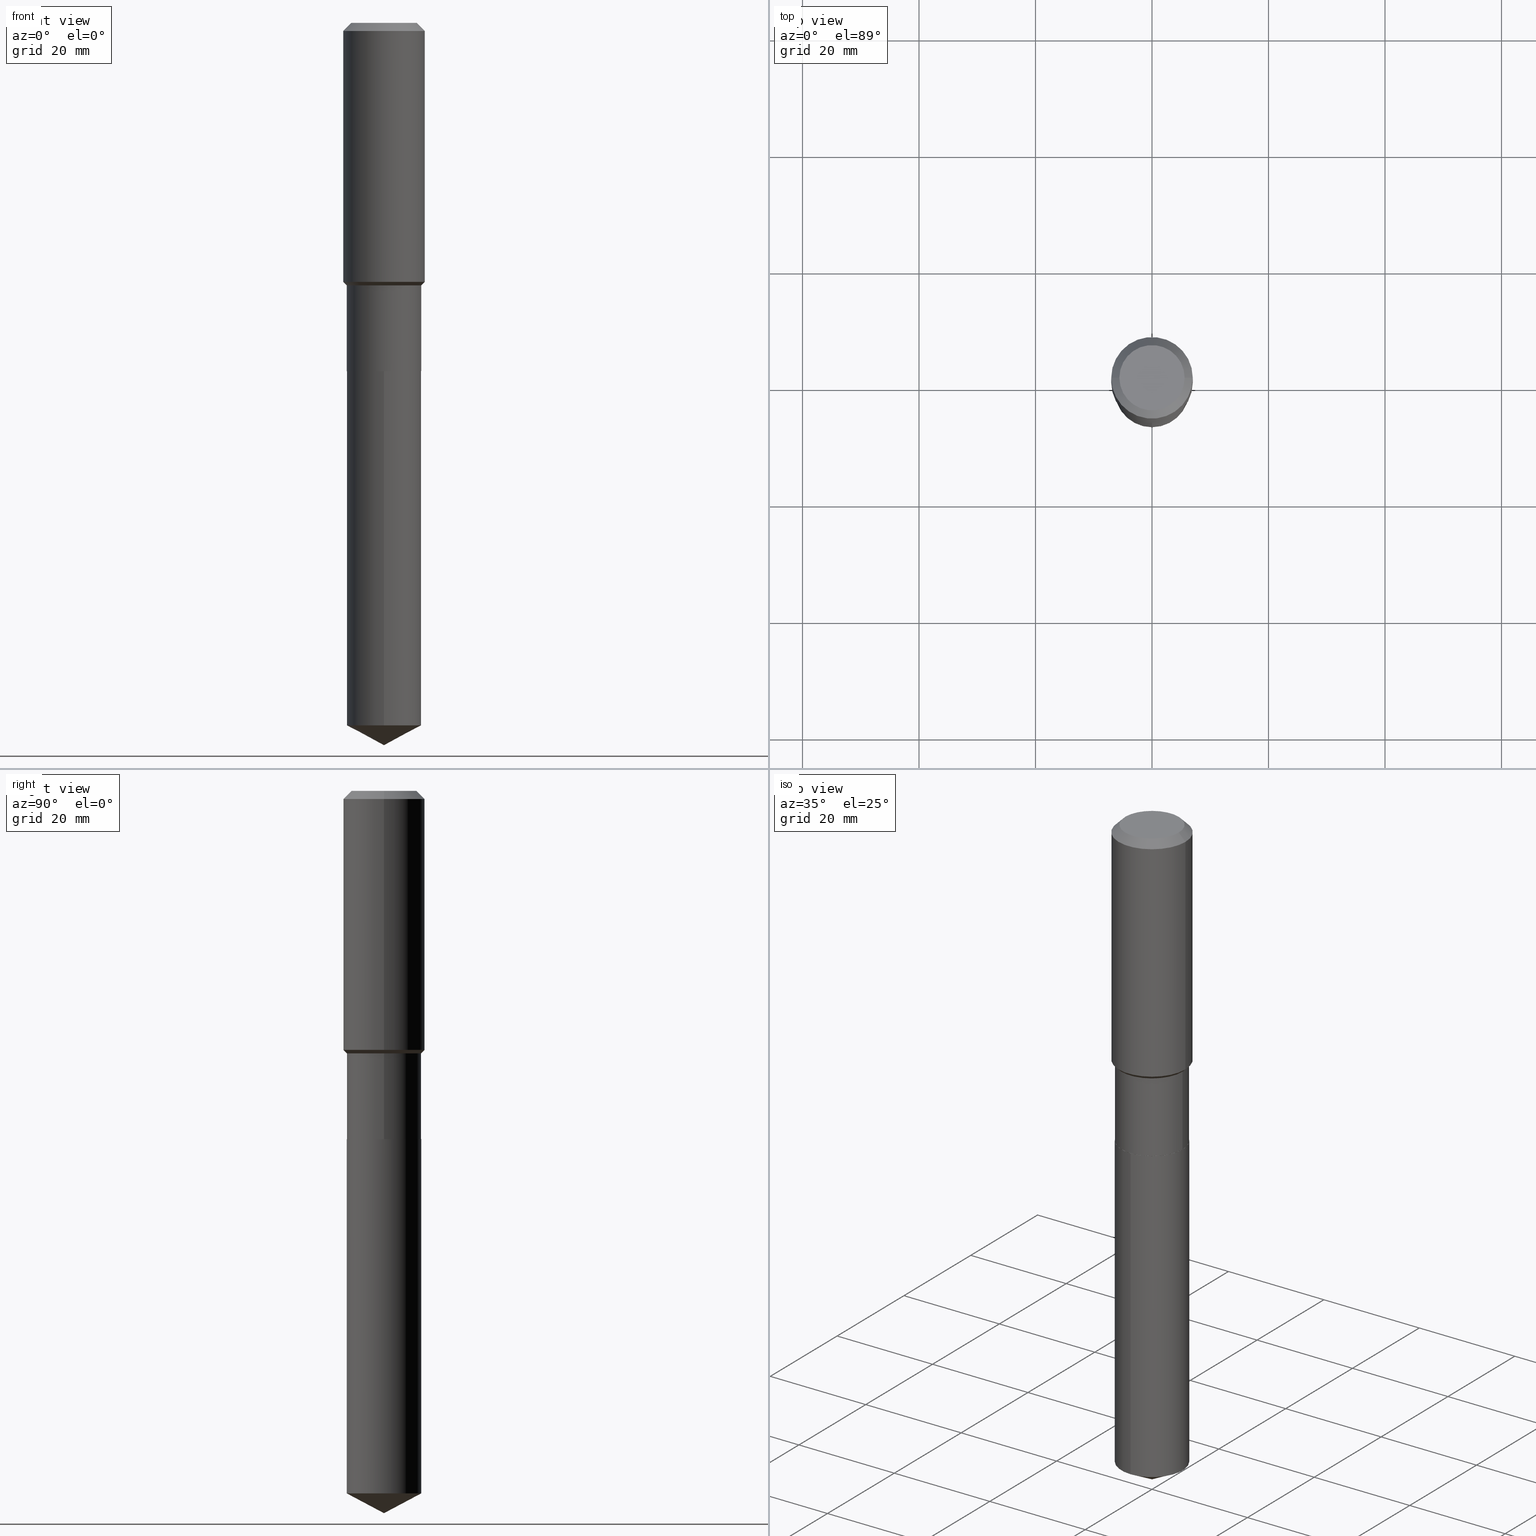
[diagram: canonical four-view strip — front | top / right | iso, engineering-drawing reading convention]
A machine part, canonical four-view strip (front | top / right | iso — engineering-drawing reading convention). The complete STEP part file that produces these views, byte-faithful:
ISO-10303-21;
HEADER;
FILE_DESCRIPTION (( 'STEP AP203' ),
    '1' );
FILE_NAME ('64892.STEP',
    '2024-04-24T19:35:12',
    ( '' ),
    ( '' ),
    'SwSTEP 2.0',
    'SolidWorks 2023',
    '' );
FILE_SCHEMA (( 'CONFIG_CONTROL_DESIGN' ));
ENDSEC;

DATA;
#1 = DIRECTION ( 'NONE',  ( -2.445468806185136877E-29, 3.491481338843145188E-15, 1.000000000000000000 ) ) ;
#2 = ORIENTED_EDGE ( 'NONE', *, *, #483, .F. ) ;
#3 = EDGE_CURVE ( 'NONE', #192, #113, #128, .T. ) ;
#4 = DIRECTION ( 'NONE',  ( -2.445468806185136597E-29, 3.491481338843145583E-15, 1.000000000000000000 ) ) ;
#5 = ORIENTED_EDGE ( 'NONE', *, *, #321, .F. ) ;
#6 = LINE ( 'NONE', #228, #369 ) ;
#7 = ORIENTED_EDGE ( 'NONE', *, *, #10, .T. ) ;
#8 = AXIS2_PLACEMENT_3D ( 'NONE', #151, #112, #265 ) ;
#9 = VECTOR ( 'NONE', #140, 39.37007874015748854 ) ;
#10 = EDGE_CURVE ( 'NONE', #92, #113, #318, .T. ) ;
#11 = DIRECTION ( 'NONE',  ( -0.7071067811866199593, 7.493145998870616062E-15, 0.7071067811864750752 ) ) ;
#12 = DATE_AND_TIME ( #422, #144 ) ;
#13 = FACE_OUTER_BOUND ( 'NONE', #420, .T. ) ;
#14 = DIRECTION ( 'NONE',  ( 1.000000000000000000, -6.982962677686263555E-15, 0.000000000000000000 ) ) ;
#15 = DIRECTION ( 'NONE',  ( 1.000000000000000000, -6.982962677686267499E-15, 0.000000000000000000 ) ) ;
#16 = CONICAL_SURFACE ( 'NONE', #400, 0.2519499999999999518, 0.7853981633974511656 ) ;
#17 = ORIENTED_EDGE ( 'NONE', *, *, #81, .T. ) ;
#18 = DIRECTION ( 'NONE',  ( 1.000000000000000000, -6.982962677686267499E-15, 0.000000000000000000 ) ) ;
#19 = DIRECTION ( 'NONE',  ( 1.000000000000000000, -6.982962677686265922E-15, 0.000000000000000000 ) ) ;
#20 = DIRECTION ( 'NONE',  ( 1.000000000000000000, -6.982962677686263555E-15, 0.000000000000000000 ) ) ;
#21 = PERSON_AND_ORGANIZATION ( #213, #40 ) ;
#22 = FACE_OUTER_BOUND ( 'NONE', #478, .T. ) ;
#23 = EDGE_CURVE ( 'NONE', #342, #266, #467, .T. ) ;
#24 = AXIS2_PLACEMENT_3D ( 'NONE', #471, #94, #282 ) ;
#25 = APPROVAL_DATE_TIME ( #100, #314 ) ;
#26 = CARTESIAN_POINT ( 'NONE',  ( -9.439721640706190018E-47, 1.347742071746724849E-32, 3.860086710912454339E-18 ) ) ;
#27 = SECURITY_CLASSIFICATION_LEVEL ( 'unclassified' ) ;
#28 = DIRECTION ( 'NONE',  ( -2.445468806185136597E-29, 3.491481338843145583E-15, 1.000000000000000000 ) ) ;
#29 = EDGE_CURVE ( 'NONE', #325, #118, #154, .T. ) ;
#30 = CARTESIAN_POINT ( 'NONE',  ( 5.757367210401667077E-29, -8.219994516038417503E-15, -2.354300000000000281 ) ) ;
#31 = CC_DESIGN_SECURITY_CLASSIFICATION ( #418, ( #319 ) ) ;
#32 = VECTOR ( 'NONE', #11, 39.37007874015748143 ) ;
#33 = DIRECTION ( 'NONE',  ( -2.445212377427573350E-29, 3.491848559418994471E-15, 1.000000000000000000 ) ) ;
#34 = DIRECTION ( 'NONE',  ( -2.438088387897960049E-29, 3.491481338843145188E-15, 1.000000000000000000 ) ) ;
#35 = VERTEX_POINT ( 'NONE', #57 ) ;
#36 = FACE_OUTER_BOUND ( 'NONE', #120, .T. ) ;
#37 = ORIENTED_EDGE ( 'NONE', *, *, #23, .T. ) ;
#38 = EDGE_CURVE ( 'NONE', #417, #356, #431, .T. ) ;
#39 = CC_DESIGN_APPROVAL ( #486, ( #329 ) ) ;
#40 = ORGANIZATION ( 'UNSPECIFIED', 'UNSPECIFIED', '' ) ;
#41 = FACE_OUTER_BOUND ( 'NONE', #242, .T. ) ;
#42 = EDGE_LOOP ( 'NONE', ( #310, #71 ) ) ;
#43 = CARTESIAN_POINT ( 'NONE',  ( 1.347942405969256063E-30, -1.924504513970354330E-16, -0.05512000000000035621 ) ) ;
#44 = ORIENTED_EDGE ( 'NONE', *, *, #366, .F. ) ;
#45 = ADVANCED_FACE ( 'NONE', ( #13 ), #214, .T. ) ;
#46 =( CONVERSION_BASED_UNIT ( 'INCH', #53 ) LENGTH_UNIT ( ) NAMED_UNIT ( #287 ) );
#47 = EDGE_LOOP ( 'NONE', ( #487, #7, #132, #44 ) ) ;
#48 = DIRECTION ( 'NONE',  ( 1.000000000000000000, 0.000000000000000000, 0.000000000000000000 ) ) ;
#49 = AXIS2_PLACEMENT_3D ( 'NONE', #79, #414, #416 ) ;
#50 = DIRECTION ( 'NONE',  ( -6.982962677686265922E-15, -1.000000000000000000, 3.252845398290450098E-15 ) ) ;
#51 = CARTESIAN_POINT ( 'NONE',  ( 5.757367210401667077E-29, -8.219994516038417503E-15, -2.354300000000000281 ) ) ;
#52 = DIRECTION ( 'NONE',  ( -2.445468806185136597E-29, 3.491481338843145583E-15, 1.000000000000000000 ) ) ;
#53 = LENGTH_MEASURE_WITH_UNIT ( LENGTH_MEASURE( 0.02539999999999999897 ), #82 );
#54 = DIRECTION ( 'NONE',  ( 1.000000000000000000, -6.982962677686267499E-15, 4.876176775795935793E-29 ) ) ;
#55 = APPROVAL_PERSON_ORGANIZATION ( #257, #314, #405 ) ;
#56 = LINE ( 'NONE', #347, #294 ) ;
#57 = CARTESIAN_POINT ( 'NONE',  ( 0.2204800000000000093, -1.797903149065768707E-15, 3.860086710924123164E-18 ) ) ;
#58 = CC_DESIGN_PERSON_AND_ORGANIZATION_ASSIGNMENT ( #119, #322, ( #180 ) ) ;
#59 = DIRECTION ( 'NONE',  ( 1.000000000000000000, -6.982962677686263555E-15, 0.000000000000000000 ) ) ;
#60 = CARTESIAN_POINT ( 'NONE',  ( 1.790212422747629662E-15, 0.2519499999999917361, -2.354300000000000725 ) ) ;
#61 = AXIS2_PLACEMENT_3D ( 'NONE', #317, #349, #50 ) ;
#62 = CARTESIAN_POINT ( 'NONE',  ( -0.2519499999999999518, -5.417252505026333520E-15, -1.774799999999999933 ) ) ;
#63 = CIRCLE ( 'NONE', #436, 0.2519499999999999518 ) ;
#64 = AXIS2_PLACEMENT_3D ( 'NONE', #138, #220, #475 ) ;
#65 = SHAPE_DEFINITION_REPRESENTATION ( #411, #364 ) ;
#66 = PLANE ( 'NONE',  #64 ) ;
#67 = DIRECTION ( 'NONE',  ( 2.445212377427573070E-29, -3.491848559418994471E-15, -1.000000000000000000 ) ) ;
#68 = LINE ( 'NONE', #116, #111 ) ;
#69 = VECTOR ( 'NONE', #254, 39.37007874015748143 ) ;
#70 = CARTESIAN_POINT ( 'NONE',  ( 5.757367210401667077E-29, -8.219994516038417503E-15, -2.354300000000000281 ) ) ;
#71 = ORIENTED_EDGE ( 'NONE', *, *, #150, .F. ) ;
#72 = ADVANCED_FACE ( 'NONE', ( #198 ), #469, .T. ) ;
#73 = CARTESIAN_POINT ( 'NONE',  ( 1.347942405969256063E-30, -1.924504513970354330E-16, -0.05512000000000035621 ) ) ;
#74 = ORIENTED_EDGE ( 'NONE', *, *, #259, .F. ) ;
#75 = CARTESIAN_POINT ( 'NONE',  ( 1.790212422747688433E-15, 0.2519499999999834650, -4.747935808692891335 ) ) ;
#76 = EDGE_CURVE ( 'NONE', #335, #149, #162, .T. ) ;
#77 = ORIENTED_EDGE ( 'NONE', *, *, #133, .F. ) ;
#78 = AXIS2_PLACEMENT_3D ( 'NONE', #70, #34, #336 ) ;
#79 = CARTESIAN_POINT ( 'NONE',  ( -9.439721640706190018E-47, 1.347742071746724849E-32, 3.860086710912454339E-18 ) ) ;
#80 = EDGE_LOOP ( 'NONE', ( #247, #110, #269, #274 ) ) ;
#81 = EDGE_CURVE ( 'NONE', #266, #342, #104, .T. ) ;
#82 =( LENGTH_UNIT ( ) NAMED_UNIT ( * ) SI_UNIT ( $, .METRE. ) );
#83 = ORIENTED_EDGE ( 'NONE', *, *, #395, .F. ) ;
#84 = DIRECTION ( 'NONE',  ( -2.445468806185136597E-29, 3.491481338843145583E-15, 1.000000000000000000 ) ) ;
#85 = DIRECTION ( 'NONE',  ( -2.445468806185136597E-29, 3.491481338843145583E-15, 1.000000000000000000 ) ) ;
#86 = CC_DESIGN_APPROVAL ( #368, ( #319 ) ) ;
#87 = CARTESIAN_POINT ( 'NONE',  ( -0.2756000000000000116, -1.195023219201267341E-15, -0.05512000000000035621 ) ) ;
#88 = ORIENTED_EDGE ( 'NONE', *, *, #178, .F. ) ;
#89 = CARTESIAN_POINT ( 'NONE',  ( 0.2519499999999999518, -7.956038526821868809E-15, -1.774799999999999933 ) ) ;
#90 = DIRECTION ( 'NONE',  ( -2.445212377427573350E-29, 3.491848559418994471E-15, 1.000000000000000000 ) ) ;
#91 = APPROVAL_DATE_TIME ( #433, #486 ) ;
#92 = VERTEX_POINT ( 'NONE', #203 ) ;
#93 = CC_DESIGN_APPROVAL ( #314, ( #418 ) ) ;
#94 = DIRECTION ( 'NONE',  ( -2.445468806185136597E-29, 3.491481338843145583E-15, 1.000000000000000000 ) ) ;
#95 = AXIS2_PLACEMENT_3D ( 'NONE', #166, #85, #19 ) ;
#96 = ADVANCED_FACE ( 'NONE', ( #124 ), #248, .T. ) ;
#97 = LINE ( 'NONE', #60, #69 ) ;
#98 = PERSON_AND_ORGANIZATION_ROLE ( 'classification_officer' ) ;
#99 = CARTESIAN_POINT ( 'NONE',  ( -0.2756000000000000116, 1.732054062573300039E-15, -0.05512000000000035621 ) ) ;
#100 = DATE_AND_TIME ( #476, #332 ) ;
#101 = APPROVAL_PERSON_ORGANIZATION ( #315, #368, #428 ) ;
#102 = CARTESIAN_POINT ( 'NONE',  ( 0.2756000000000001227, -1.924504513970336137E-15, 1.343874319409360548E-29 ) ) ;
#103 = EDGE_LOOP ( 'NONE', ( #313, #415, #299, #196 ) ) ;
#104 = CIRCLE ( 'NONE', #61, 0.2519500000000000073 ) ;
#105 = CALENDAR_DATE ( 2024, 24, 4 ) ;
#106 = DIRECTION ( 'NONE',  ( -0.7071067811865453523, 2.468850131082234184E-15, -0.7071067811865496822 ) ) ;
#107 = MANIFOLD_SOLID_BREP ( 'Body-Move/Copy2[1]', #427 ) ;
#108 = CARTESIAN_POINT ( 'NONE',  ( 5.757367210401667077E-29, -8.219994516038417503E-15, -2.354300000000000281 ) ) ;
#109 = DIRECTION ( 'NONE',  ( -2.445468806185136597E-29, 3.491481338843145583E-15, 1.000000000000000000 ) ) ;
#110 = ORIENTED_EDGE ( 'NONE', *, *, #146, .T. ) ;
#111 = VECTOR ( 'NONE', #1, 39.37007874015748143 ) ;
#112 = DIRECTION ( 'NONE',  ( 2.445468806185136597E-29, -3.491481338843145583E-15, -1.000000000000000000 ) ) ;
#113 = VERTEX_POINT ( 'NONE', #323 ) ;
#114 = CARTESIAN_POINT ( 'NONE',  ( 4.340218037217379778E-29, -6.196681080178814403E-15, -1.774799999999999933 ) ) ;
#115 = VERTEX_POINT ( 'NONE', #391 ) ;
#116 = CARTESIAN_POINT ( 'NONE',  ( -0.2756000000000001227, 1.958255779754836984E-15, -1.355658510874252567E-29 ) ) ;
#117 = ADVANCED_FACE ( 'NONE', ( #363 ), #243, .T. ) ;
#118 = VERTEX_POINT ( 'NONE', #62 ) ;
#119 = PERSON_AND_ORGANIZATION ( #213, #40 ) ;
#120 = EDGE_LOOP ( 'NONE', ( #74, #432, #229, #209 ) ) ;
#121 = APPROVAL_ROLE ( '' ) ;
#122 = VERTEX_POINT ( 'NONE', #183 ) ;
#123 = APPROVAL_STATUS ( 'not_yet_approved' ) ;
#124 = FACE_OUTER_BOUND ( 'NONE', #80, .T. ) ;
#125 = AXIS2_PLACEMENT_3D ( 'NONE', #30, #67, #326 ) ;
#126 = EDGE_CURVE ( 'NONE', #346, #149, #396, .T. ) ;
#127 = AXIS2_PLACEMENT_3D ( 'NONE', #309, #157, #457 ) ;
#128 = CIRCLE ( 'NONE', #24, 0.2519500000000000073 ) ;
#129 = ORIENTED_EDGE ( 'NONE', *, *, #240, .T. ) ;
#130 = COORDINATED_UNIVERSAL_TIME_OFFSET ( 5, 0, .BEHIND. ) ;
#131 = DIRECTION ( 'NONE',  ( -2.445212377427573350E-29, 3.491848559418994471E-15, 1.000000000000000000 ) ) ;
#132 = ORIENTED_EDGE ( 'NONE', *, *, #3, .F. ) ;
#133 = EDGE_CURVE ( 'NONE', #149, #335, #136, .T. ) ;
#134 = LOCAL_TIME ( 15, 35, 12.00000000000000000, #219 ) ;
#135 = LINE ( 'NONE', #99, #256 ) ;
#136 = CIRCLE ( 'NONE', #279, 0.2519500000000000073 ) ;
#137 = CC_DESIGN_PERSON_AND_ORGANIZATION_ASSIGNMENT ( #480, #402, ( #319 ) ) ;
#138 = CARTESIAN_POINT ( 'NONE',  ( -4.719860820353095009E-47, 6.738710358733624243E-33, 1.930043355456227170E-18 ) ) ;
#139 = DATE_AND_TIME ( #105, #182 ) ;
#140 = DIRECTION ( 'NONE',  ( -6.165590087286828929E-15, -0.8829475928589255451, 0.4694715627858935258 ) ) ;
#141 = EDGE_LOOP ( 'NONE', ( #286, #454 ) ) ;
#142 = ADVANCED_FACE ( 'NONE', ( #446 ), #66, .F. ) ;
#143 = DATE_AND_TIME ( #221, #134 ) ;
#144 = LOCAL_TIME ( 15, 35, 12.00000000000000000, #424 ) ;
#145 = DIRECTION ( 'NONE',  ( -6.982962677686265922E-15, -1.000000000000000000, 4.337127197720600657E-15 ) ) ;
#146 = EDGE_CURVE ( 'NONE', #113, #118, #252, .T. ) ;
#147 = DIRECTION ( 'NONE',  ( 1.000000000000000000, -6.982962677686267499E-15, 4.876176775795935793E-29 ) ) ;
#148 = FACE_OUTER_BOUND ( 'NONE', #158, .T. ) ;
#149 = VERTEX_POINT ( 'NONE', #292 ) ;
#150 = EDGE_CURVE ( 'NONE', #92, #115, #339, .T. ) ;
#151 = CARTESIAN_POINT ( 'NONE',  ( 1.347942405969256063E-30, -1.924504513970354330E-16, -0.05512000000000035621 ) ) ;
#152 = AXIS2_PLACEMENT_3D ( 'NONE', #26, #177, #293 ) ;
#153 = ORIENTED_EDGE ( 'NONE', *, *, #464, .T. ) ;
#154 = CIRCLE ( 'NONE', #311, 0.2519499999999999518 ) ;
#155 = CARTESIAN_POINT ( 'NONE',  ( -1.759357446642997213E-15, -0.2519500000000082229, -2.354299999999999393 ) ) ;
#156 = ORIENTED_EDGE ( 'NONE', *, *, #290, .T. ) ;
#157 = DIRECTION ( 'NONE',  ( -2.445212377427573350E-29, 3.491848559418994471E-15, 1.000000000000000000 ) ) ;
#158 = EDGE_LOOP ( 'NONE', ( #5, #434, #234 ) ) ;
#159 = DIRECTION ( 'NONE',  ( 0.7071067811866199593, -2.468850131083015945E-15, 0.7071067811864750752 ) ) ;
#160 = ORIENTED_EDGE ( 'NONE', *, *, #150, .T. ) ;
#161 = CIRCLE ( 'NONE', #377, 0.2519500000000000073 ) ;
#162 = CIRCLE ( 'NONE', #327, 0.2519500000000000073 ) ;
#163 = ORIENTED_EDGE ( 'NONE', *, *, #338, .T. ) ;
#164 = APPLICATION_CONTEXT ( 'configuration controlled 3d designs of mechanical parts and assemblies' ) ;
#165 = DATE_TIME_ROLE ( 'creation_date' ) ;
#166 = CARTESIAN_POINT ( 'NONE',  ( 1.347942405969256063E-30, -1.924504513970354330E-16, -0.05512000000000035621 ) ) ;
#167 = DIRECTION ( 'NONE',  ( -0.7071067811865495711, 7.493145998870362049E-15, 0.7071067811865454633 ) ) ;
#168 = CARTESIAN_POINT ( 'NONE',  ( -8.433031782014363437E-28, 1.204283617982054196E-13, 34.48817874015747975 ) ) ;
#169 = CIRCLE ( 'NONE', #233, 0.2756000000000000116 ) ;
#170 = DIRECTION ( 'NONE',  ( -2.445468806185136597E-29, 3.491481338843145583E-15, 1.000000000000000000 ) ) ;
#171 = EDGE_CURVE ( 'NONE', #249, #417, #135, .T. ) ;
#172 = DIRECTION ( 'NONE',  ( 0.000000000000000000, 0.000000000000000000, 1.000000000000000000 ) ) ;
#173 = ORIENTED_EDGE ( 'NONE', *, *, #275, .T. ) ;
#174 = CYLINDRICAL_SURFACE ( 'NONE', #474, 0.2519500000000000073 ) ;
#175 = DIRECTION ( 'NONE',  ( 1.000000000000000000, -6.982962677686267499E-15, 4.876176775795935793E-29 ) ) ;
#176 = PERSON_AND_ORGANIZATION_ROLE ( 'creator' ) ;
#177 = DIRECTION ( 'NONE',  ( -2.445468806185136597E-29, 3.491481338843145583E-15, 1.000000000000000000 ) ) ;
#178 = EDGE_CURVE ( 'NONE', #249, #35, #409, .T. ) ;
#179 = APPROVAL_DATE_TIME ( #139, #368 ) ;
#180 = PRODUCT ( '64892', '64892', '', ( #312 ) ) ;
#181 = DIRECTION ( 'NONE',  ( -2.445468806185136597E-29, 3.491481338843145583E-15, 1.000000000000000000 ) ) ;
#182 = LOCAL_TIME ( 15, 35, 12.00000000000000000, #210 ) ;
#183 = CARTESIAN_POINT ( 'NONE',  ( -0.2756000000000002337, -4.155851766760336357E-15, -1.751149999999999762 ) ) ;
#184 = AXIS2_PLACEMENT_3D ( 'NONE', #222, #211, #147 ) ;
#185 = CARTESIAN_POINT ( 'NONE',  ( 0.000000000000000000, 0.000000000000000000, 0.000000000000000000 ) ) ;
#186 = ORIENTED_EDGE ( 'NONE', *, *, #133, .T. ) ;
#187 = DIRECTION ( 'NONE',  ( 1.000000000000000000, -6.982962677686265922E-15, 0.000000000000000000 ) ) ;
#188 = PRODUCT_RELATED_PRODUCT_CATEGORY ( 'detail', '', ( #180 ) ) ;
#189 = EDGE_LOOP ( 'NONE', ( #444, #153, #83, #2 ) ) ;
#190 = LINE ( 'NONE', #155, #452 ) ;
#191 = VECTOR ( 'NONE', #361, 39.37007874015748143 ) ;
#192 = VERTEX_POINT ( 'NONE', #398 ) ;
#193 = DIRECTION ( 'NONE',  ( -6.982962677686265922E-15, -1.000000000000000000, 3.252845398290450098E-15 ) ) ;
#194 = VERTEX_POINT ( 'NONE', #443 ) ;
#195 = CYLINDRICAL_SURFACE ( 'NONE', #429, 0.2756000000000001227 ) ;
#196 = ORIENTED_EDGE ( 'NONE', *, *, #253, .F. ) ;
#197 = DIRECTION ( 'NONE',  ( 1.000000000000000000, -6.982962677686263555E-15, 0.000000000000000000 ) ) ;
#198 = FACE_OUTER_BOUND ( 'NONE', #103, .T. ) ;
#199 = AXIS2_PLACEMENT_3D ( 'NONE', #355, #172, #48 ) ;
#200 = AXIS2_PLACEMENT_3D ( 'NONE', #365, #181, #374 ) ;
#201 = FACE_OUTER_BOUND ( 'NONE', #308, .T. ) ;
#202 = ADVANCED_FACE ( 'NONE', ( #289 ), #174, .T. ) ;
#203 = CARTESIAN_POINT ( 'NONE',  ( -0.2514500000000000068, -6.430685579795535520E-15, -2.354300000000000281 ) ) ;
#204 = EDGE_LOOP ( 'NONE', ( #186, #129, #272, #264 ) ) ;
#205 = ORIENTED_EDGE ( 'NONE', *, *, #146, .F. ) ;
#206 = ADVANCED_FACE ( 'NONE', ( #212 ), #362, .F. ) ;
#207 = AXIS2_PLACEMENT_3D ( 'NONE', #298, #109, #453 ) ;
#208 = PERSON_AND_ORGANIZATION_ROLE ( 'creator' ) ;
#209 = ORIENTED_EDGE ( 'NONE', *, *, #171, .F. ) ;
#210 = COORDINATED_UNIVERSAL_TIME_OFFSET ( 5, 0, .BEHIND. ) ;
#211 = DIRECTION ( 'NONE',  ( -2.445468806185136597E-29, 3.491481338843145583E-15, 1.000000000000000000 ) ) ;
#212 = FACE_OUTER_BOUND ( 'NONE', #456, .T. ) ;
#213 = PERSON ( 'UNSPECIFIED', 'UNSPECIFIED', 'UNSPECIFIED', ('UNSPECIFIED'), ('UNSPECIFIED'), ('UNSPECIFIED') ) ;
#214 = CONICAL_SURFACE ( 'NONE', #217, 74.04434902938322693, 1.082104136236484715 ) ;
#215 = VECTOR ( 'NONE', #301, 39.37007874015748143 ) ;
#216 = DIRECTION ( 'NONE',  ( -2.445468806185136877E-29, 3.491481338843145188E-15, 1.000000000000000000 ) ) ;
#217 = AXIS2_PLACEMENT_3D ( 'NONE', #168, #131, #386 ) ;
#218 = ADVANCED_FACE ( 'NONE', ( #328 ), #484, .T. ) ;
#219 = COORDINATED_UNIVERSAL_TIME_OFFSET ( 5, 0, .BEHIND. ) ;
#220 = DIRECTION ( 'NONE',  ( 2.438088387897960049E-29, -3.491481338843145188E-15, -1.000000000000000000 ) ) ;
#221 = CALENDAR_DATE ( 2024, 24, 4 ) ;
#222 = CARTESIAN_POINT ( 'NONE',  ( 0.000000000000000000, 0.000000000000000000, 0.000000000000000000 ) ) ;
#223 = EDGE_CURVE ( 'NONE', #192, #325, #297, .T. ) ;
#224 = CIRCLE ( 'NONE', #207, 0.2756000000000002337 ) ;
#225 = DIRECTION ( 'NONE',  ( -2.445468806185136597E-29, 3.491481338843145583E-15, 1.000000000000000000 ) ) ;
#226 = AXIS2_PLACEMENT_3D ( 'NONE', #390, #52, #54 ) ;
#227 = CC_DESIGN_PERSON_AND_ORGANIZATION_ASSIGNMENT ( #397, #98, ( #418 ) ) ;
#228 = CARTESIAN_POINT ( 'NONE',  ( 0.2514500000000000068, -9.975860481342629691E-15, -2.354300000000000281 ) ) ;
#229 = ORIENTED_EDGE ( 'NONE', *, *, #304, .T. ) ;
#230 = DIRECTION ( 'NONE',  ( -1.000000000000000000, 6.982962677686269077E-15, 0.000000000000000000 ) ) ;
#231 = ORIENTED_EDGE ( 'NONE', *, *, #395, .T. ) ;
#232 = FACE_OUTER_BOUND ( 'NONE', #472, .T. ) ;
#233 = AXIS2_PLACEMENT_3D ( 'NONE', #43, #225, #187 ) ;
#234 = ORIENTED_EDGE ( 'NONE', *, *, #76, .F. ) ;
#235 = ADVANCED_FACE ( 'NONE', ( #22 ), #473, .T. ) ;
#236 = CARTESIAN_POINT ( 'NONE',  ( 0.2519499999999999518, -7.956038526821868809E-15, -1.774799999999999933 ) ) ;
#237 = ORIENTED_EDGE ( 'NONE', *, *, #338, .F. ) ;
#238 = APPLICATION_PROTOCOL_DEFINITION ( 'international standard', 'config_control_design', 1994, #406 ) ;
#239 = ORIENTED_EDGE ( 'NONE', *, *, #223, .T. ) ;
#240 = EDGE_CURVE ( 'NONE', #335, #266, #97, .T. ) ;
#241 = DIRECTION ( 'NONE',  ( -2.445468806185136597E-29, 3.491481338843145583E-15, 1.000000000000000000 ) ) ;
#242 = EDGE_LOOP ( 'NONE', ( #381, #277, #156, #359 ) ) ;
#243 = CONICAL_SURFACE ( 'NONE', #383, 0.2514500000000000068, 0.7853981633975507526 ) ;
#244 = CONICAL_SURFACE ( 'NONE', #278, 0.2756000000000000116, 0.7853981633974452814 ) ;
#245 = CC_DESIGN_DATE_AND_TIME_ASSIGNMENT ( #12, #165, ( #329 ) ) ;
#246 = CARTESIAN_POINT ( 'NONE',  ( 5.757367210401667077E-29, -8.219994516038417503E-15, -2.354300000000000281 ) ) ;
#247 = ORIENTED_EDGE ( 'NONE', *, *, #3, .T. ) ;
#248 = CYLINDRICAL_SURFACE ( 'NONE', #226, 0.2519499999999999518 ) ;
#249 = VERTEX_POINT ( 'NONE', #399 ) ;
#250 = EDGE_CURVE ( 'NONE', #194, #356, #330, .T. ) ;
#251 = CARTESIAN_POINT ( 'NONE',  ( 5.757367210401667077E-29, -8.219994516038417503E-15, -2.354300000000000281 ) ) ;
#252 = LINE ( 'NONE', #331, #490 ) ;
#253 = EDGE_CURVE ( 'NONE', #122, #194, #350, .T. ) ;
#254 = DIRECTION ( 'NONE',  ( -2.445212377427573350E-29, 3.491848559418994471E-15, 1.000000000000000000 ) ) ;
#255 = DIRECTION ( 'NONE',  ( -2.445468806185136877E-29, 3.491481338843145188E-15, 1.000000000000000000 ) ) ;
#256 = VECTOR ( 'NONE', #106, 39.37007874015748143 ) ;
#257 = PERSON_AND_ORGANIZATION ( #213, #40 ) ;
#258 = CARTESIAN_POINT ( 'NONE',  ( 1.193728230536367082E-28, -1.704685548222758730E-14, -4.881899999999999906 ) ) ;
#259 = EDGE_CURVE ( 'NONE', #35, #249, #263, .T. ) ;
#260 = DIRECTION ( 'NONE',  ( -2.445212377427573350E-29, 3.491848559418994471E-15, 1.000000000000000000 ) ) ;
#261 = LOCAL_TIME ( 15, 35, 12.00000000000000000, #130 ) ;
#262 = FACE_OUTER_BOUND ( 'NONE', #42, .T. ) ;
#263 = CIRCLE ( 'NONE', #49, 0.2204800000000000093 ) ;
#264 = ORIENTED_EDGE ( 'NONE', *, *, #290, .F. ) ;
#265 = DIRECTION ( 'NONE',  ( -1.000000000000000000, 6.982962677686269077E-15, 0.000000000000000000 ) ) ;
#266 = VERTEX_POINT ( 'NONE', #370 ) ;
#267 = ADVANCED_FACE ( 'NONE', ( #41 ), #341, .T. ) ;
#268 = CARTESIAN_POINT ( 'NONE',  ( 5.756144475998574276E-29, -8.218248775368996789E-15, -2.353800000000000114 ) ) ;
#269 = ORIENTED_EDGE ( 'NONE', *, *, #29, .F. ) ;
#270 = LINE ( 'NONE', #419, #215 ) ;
#271 = VECTOR ( 'NONE', #307, 39.37007874015748143 ) ;
#272 = ORIENTED_EDGE ( 'NONE', *, *, #23, .F. ) ;
#273 =( NAMED_UNIT ( * ) PLANE_ANGLE_UNIT ( ) SI_UNIT ( $, .RADIAN. ) );
#274 = ORIENTED_EDGE ( 'NONE', *, *, #223, .F. ) ;
#275 = EDGE_CURVE ( 'NONE', #122, #417, #68, .T. ) ;
#276 = DIRECTION ( 'NONE',  ( -6.982962677686265922E-15, -1.000000000000000000, 3.252845398290450098E-15 ) ) ;
#277 = ORIENTED_EDGE ( 'NONE', *, *, #76, .T. ) ;
#278 = AXIS2_PLACEMENT_3D ( 'NONE', #73, #380, #230 ) ;
#279 = AXIS2_PLACEMENT_3D ( 'NONE', #481, #403, #145 ) ;
#280 = UNCERTAINTY_MEASURE_WITH_UNIT (LENGTH_MEASURE( 1.000000000000000082E-05 ), #46, 'distance_accuracy_value', 'NONE');
#281 = MANIFOLD_SOLID_BREP ( 'Body-Move/Copy2[2]', #450 ) ;
#282 = DIRECTION ( 'NONE',  ( 1.000000000000000000, -6.982962677686265922E-15, 0.000000000000000000 ) ) ;
#283 = CALENDAR_DATE ( 2024, 24, 4 ) ;
#284 = ADVANCED_FACE ( 'NONE', ( #36 ), #244, .T. ) ;
#285 = CARTESIAN_POINT ( 'NONE',  ( 4.340218037217379778E-29, -6.196681080178814403E-15, -1.774799999999999933 ) ) ;
#286 = ORIENTED_EDGE ( 'NONE', *, *, #178, .T. ) ;
#287 = DIMENSIONAL_EXPONENTS ( 1.000000000000000000, 0.000000000000000000, 0.000000000000000000, 0.000000000000000000, 0.000000000000000000, 0.000000000000000000, 0.000000000000000000 ) ;
#288 = AXIS2_PLACEMENT_3D ( 'NONE', #51, #241, #197 ) ;
#289 = FACE_OUTER_BOUND ( 'NONE', #204, .T. ) ;
#290 = EDGE_CURVE ( 'NONE', #149, #342, #190, .T. ) ;
#291 = COORDINATED_UNIVERSAL_TIME_OFFSET ( 5, 0, .BEHIND. ) ;
#292 = CARTESIAN_POINT ( 'NONE',  ( -1.759357446642938640E-15, -0.2519500000000166051, -4.747935808692888671 ) ) ;
#293 = DIRECTION ( 'NONE',  ( 1.000000000000000000, -6.982962677686266711E-15, 4.876132675269083677E-29 ) ) ;
#294 = VECTOR ( 'NONE', #167, 39.37007874015748143 ) ;
#295 = APPROVAL_STATUS ( 'not_yet_approved' ) ;
#296 = DIRECTION ( 'NONE',  ( -2.445212377427573350E-29, 3.491848559418994471E-15, 1.000000000000000000 ) ) ;
#297 = LINE ( 'NONE', #447, #191 ) ;
#298 = CARTESIAN_POINT ( 'NONE',  ( 4.282382699951101143E-29, -6.114107546515173735E-15, -1.751149999999999762 ) ) ;
#299 = ORIENTED_EDGE ( 'NONE', *, *, #483, .T. ) ;
#300 = CIRCLE ( 'NONE', #288, 0.2514500000000000068 ) ;
#301 = DIRECTION ( 'NONE',  ( 0.7071067811865453523, -7.319954787623248157E-15, -0.7071067811865496822 ) ) ;
#302 = VECTOR ( 'NONE', #255, 39.37007874015748143 ) ;
#303 = EDGE_LOOP ( 'NONE', ( #489, #88, #449, #337 ) ) ;
#304 = EDGE_CURVE ( 'NONE', #356, #417, #169, .T. ) ;
#305 = DIRECTION ( 'NONE',  ( -2.445468806185136597E-29, 3.491481338843145583E-15, 1.000000000000000000 ) ) ;
#306 = ORIENTED_EDGE ( 'NONE', *, *, #126, .F. ) ;
#307 = DIRECTION ( 'NONE',  ( 6.273719981627759766E-15, 0.8829475928589287648, 0.4694715627858873086 ) ) ;
#308 = EDGE_LOOP ( 'NONE', ( #376, #160, #373, #237 ) ) ;
#309 = CARTESIAN_POINT ( 'NONE',  ( -8.433031782014363437E-28, 1.204283617982054196E-13, 34.48817874015747975 ) ) ;
#310 = ORIENTED_EDGE ( 'NONE', *, *, #442, .F. ) ;
#311 = AXIS2_PLACEMENT_3D ( 'NONE', #430, #425, #468 ) ;
#312 = MECHANICAL_CONTEXT ( 'NONE', #406, 'mechanical' ) ;
#313 = ORIENTED_EDGE ( 'NONE', *, *, #464, .F. ) ;
#314 = APPROVAL ( #295, 'UNSPECIFIED' ) ;
#315 = PERSON_AND_ORGANIZATION ( #213, #40 ) ;
#316 = DESIGN_CONTEXT ( 'detailed design', #164, 'design' ) ;
#317 = CARTESIAN_POINT ( 'NONE',  ( 5.757367210401667077E-29, -8.219994516038417503E-15, -2.354300000000000281 ) ) ;
#318 = LINE ( 'NONE', #354, #32 ) ;
#319 = PRODUCT_DEFINITION_FORMATION_WITH_SPECIFIED_SOURCE ( 'ANY', '', #180, .NOT_KNOWN. ) ;
#320 = AXIS2_PLACEMENT_3D ( 'NONE', #251, #394, #276 ) ;
#321 = EDGE_CURVE ( 'NONE', #346, #335, #459, .T. ) ;
#322 = PERSON_AND_ORGANIZATION_ROLE ( 'design_owner' ) ;
#323 = CARTESIAN_POINT ( 'NONE',  ( -0.2519500000000000073, -5.417252505026333520E-15, -2.353800000000000114 ) ) ;
#324 =( NAMED_UNIT ( * ) SI_UNIT ( $, .STERADIAN. ) SOLID_ANGLE_UNIT ( ) );
#325 = VERTEX_POINT ( 'NONE', #236 ) ;
#326 = DIRECTION ( 'NONE',  ( 6.982962677686265922E-15, 1.000000000000000000, -3.491848559418994471E-15 ) ) ;
#327 = AXIS2_PLACEMENT_3D ( 'NONE', #466, #90, #463 ) ;
#328 = FACE_OUTER_BOUND ( 'NONE', #379, .T. ) ;
#329 = PRODUCT_DEFINITION ( 'UNKNOWN', '', #319, #316 ) ;
#330 = LINE ( 'NONE', #102, #302 ) ;
#331 = CARTESIAN_POINT ( 'NONE',  ( -0.2519499999999999518, 1.790212422747572076E-15, -1.239325695989723260E-29 ) ) ;
#332 = LOCAL_TIME ( 15, 35, 12.00000000000000000, #291 ) ;
#333 = DIRECTION ( 'NONE',  ( -6.982962677686265922E-15, -1.000000000000000000, 3.252845398290450098E-15 ) ) ;
#334 = DIRECTION ( 'NONE',  ( 1.000000000000000000, -6.982962677686267499E-15, 0.000000000000000000 ) ) ;
#335 = VERTEX_POINT ( 'NONE', #75 ) ;
#336 = DIRECTION ( 'NONE',  ( 1.000000000000000000, -6.982962677686265922E-15, 4.876176775795935793E-29 ) ) ;
#337 = ORIENTED_EDGE ( 'NONE', *, *, #38, .T. ) ;
#338 = EDGE_CURVE ( 'NONE', #113, #192, #161, .T. ) ;
#339 = CIRCLE ( 'NONE', #401, 0.2514500000000000068 ) ;
#340 = AXIS2_PLACEMENT_3D ( 'NONE', #246, #388, #14 ) ;
#341 = CYLINDRICAL_SURFACE ( 'NONE', #387, 0.2519500000000000073 ) ;
#342 = VERTEX_POINT ( 'NONE', #485 ) ;
#343 = DIRECTION ( 'NONE',  ( 1.000000000000000000, -6.982962677686265922E-15, 0.000000000000000000 ) ) ;
#344 = ORIENTED_EDGE ( 'NONE', *, *, #38, .F. ) ;
#345 = DIRECTION ( 'NONE',  ( -2.445468806185136597E-29, 3.491481338843145583E-15, 1.000000000000000000 ) ) ;
#346 = VERTEX_POINT ( 'NONE', #372 ) ;
#347 = CARTESIAN_POINT ( 'NONE',  ( -0.2519499999999999518, -4.406468657431242722E-15, -1.774799999999999933 ) ) ;
#348 =( GEOMETRIC_REPRESENTATION_CONTEXT ( 3 ) GLOBAL_UNCERTAINTY_ASSIGNED_CONTEXT ( ( #280 ) ) GLOBAL_UNIT_ASSIGNED_CONTEXT ( ( #46, #273, #324 ) ) REPRESENTATION_CONTEXT ( 'NONE', 'WORKASPACE' ) );
#349 = DIRECTION ( 'NONE',  ( -2.445212377427573350E-29, 3.491848559418994471E-15, 1.000000000000000000 ) ) ;
#350 = CIRCLE ( 'NONE', #200, 0.2756000000000002337 ) ;
#351 = APPROVAL_STATUS ( 'not_yet_approved' ) ;
#352 = ORIENTED_EDGE ( 'NONE', *, *, #321, .T. ) ;
#353 = FACE_OUTER_BOUND ( 'NONE', #189, .T. ) ;
#354 = CARTESIAN_POINT ( 'NONE',  ( -0.2514500000000000068, -6.433334806969646721E-15, -2.354300000000000281 ) ) ;
#355 = CARTESIAN_POINT ( 'NONE',  ( 0.000000000000000000, 0.000000000000000000, 0.000000000000000000 ) ) ;
#356 = VERTEX_POINT ( 'NONE', #455 ) ;
#357 = VECTOR ( 'NONE', #465, 39.37007874015748143 ) ;
#358 = CARTESIAN_POINT ( 'NONE',  ( 4.340218037217379778E-29, -6.196681080178814403E-15, -1.774799999999999933 ) ) ;
#359 = ORIENTED_EDGE ( 'NONE', *, *, #81, .F. ) ;
#360 = ADVANCED_FACE ( 'NONE', ( #232 ), #195, .T. ) ;
#361 = DIRECTION ( 'NONE',  ( -2.445468806185136877E-29, 3.491481338843145188E-15, 1.000000000000000000 ) ) ;
#362 = PLANE ( 'NONE',  #125 ) ;
#363 = FACE_OUTER_BOUND ( 'NONE', #47, .T. ) ;
#364 = ADVANCED_BREP_SHAPE_REPRESENTATION ( '64892', ( #107, #281, #199 ), #348 ) ;
#365 = CARTESIAN_POINT ( 'NONE',  ( 4.282382699951101143E-29, -6.114107546515173735E-15, -1.751149999999999762 ) ) ;
#366 = EDGE_CURVE ( 'NONE', #115, #192, #6, .T. ) ;
#367 = DIRECTION ( 'NONE',  ( -2.445468806185136597E-29, 3.491481338843145583E-15, 1.000000000000000000 ) ) ;
#368 = APPROVAL ( #123, 'UNSPECIFIED' ) ;
#369 = VECTOR ( 'NONE', #159, 39.37007874015748143 ) ;
#370 = CARTESIAN_POINT ( 'NONE',  ( 1.790212422747688433E-15, 0.2519499999999917361, -2.354300000000000725 ) ) ;
#371 = EDGE_CURVE ( 'NONE', #118, #325, #63, .T. ) ;
#372 = CARTESIAN_POINT ( 'NONE',  ( 1.193728230536367082E-28, -1.704685548222758730E-14, -4.881899999999999906 ) ) ;
#373 = ORIENTED_EDGE ( 'NONE', *, *, #366, .T. ) ;
#374 = DIRECTION ( 'NONE',  ( 1.000000000000000000, -6.982962677686267499E-15, 0.000000000000000000 ) ) ;
#375 = ADVANCED_FACE ( 'NONE', ( #148 ), #451, .T. ) ;
#376 = ORIENTED_EDGE ( 'NONE', *, *, #10, .F. ) ;
#377 = AXIS2_PLACEMENT_3D ( 'NONE', #268, #305, #343 ) ;
#378 = CARTESIAN_POINT ( 'NONE',  ( 1.193850031346361269E-28, -1.704512638742414748E-14, -4.881899999999999906 ) ) ;
#379 = EDGE_LOOP ( 'NONE', ( #231, #173, #458, #461 ) ) ;
#380 = DIRECTION ( 'NONE',  ( 2.445468806185136597E-29, -3.491481338843145583E-15, -1.000000000000000000 ) ) ;
#381 = ORIENTED_EDGE ( 'NONE', *, *, #240, .F. ) ;
#382 = ORIENTED_EDGE ( 'NONE', *, *, #371, .F. ) ;
#383 = AXIS2_PLACEMENT_3D ( 'NONE', #108, #367, #20 ) ;
#384 = LINE ( 'NONE', #89, #357 ) ;
#385 = APPROVAL_PERSON_ORGANIZATION ( #470, #486, #121 ) ;
#386 = DIRECTION ( 'NONE',  ( -6.982962677686263555E-15, -1.000000000000000000, 3.541896320645575857E-15 ) ) ;
#387 = AXIS2_PLACEMENT_3D ( 'NONE', #408, #260, #193 ) ;
#388 = DIRECTION ( 'NONE',  ( -2.445468806185136597E-29, 3.491481338843145583E-15, 1.000000000000000000 ) ) ;
#389 = EDGE_CURVE ( 'NONE', #35, #356, #270, .T. ) ;
#390 = CARTESIAN_POINT ( 'NONE',  ( 0.000000000000000000, 0.000000000000000000, 0.000000000000000000 ) ) ;
#391 = CARTESIAN_POINT ( 'NONE',  ( 0.2514500000000000068, -9.975860481342629691E-15, -2.354300000000000281 ) ) ;
#392 = CC_DESIGN_DATE_AND_TIME_ASSIGNMENT ( #143, #439, ( #418 ) ) ;
#393 = PERSON_AND_ORGANIZATION ( #213, #40 ) ;
#394 = DIRECTION ( 'NONE',  ( -2.445212377427573350E-29, 3.491848559418994471E-15, 1.000000000000000000 ) ) ;
#395 = EDGE_CURVE ( 'NONE', #194, #122, #224, .T. ) ;
#396 = LINE ( 'NONE', #258, #9 ) ;
#397 = PERSON_AND_ORGANIZATION ( #213, #40 ) ;
#398 = CARTESIAN_POINT ( 'NONE',  ( 0.2519500000000000073, -9.977606222012051983E-15, -2.353800000000000114 ) ) ;
#399 = CARTESIAN_POINT ( 'NONE',  ( -0.2204800000000000093, 1.635828836874783961E-15, 3.860086710901350968E-18 ) ) ;
#400 = AXIS2_PLACEMENT_3D ( 'NONE', #358, #84, #18 ) ;
#401 = AXIS2_PLACEMENT_3D ( 'NONE', #441, #477, #59 ) ;
#402 = PERSON_AND_ORGANIZATION_ROLE ( 'design_supplier' ) ;
#403 = DIRECTION ( 'NONE',  ( -2.445212377427573350E-29, 3.491848559418994471E-15, 1.000000000000000000 ) ) ;
#404 = ADVANCED_FACE ( 'NONE', ( #262 ), #410, .F. ) ;
#405 = APPROVAL_ROLE ( '' ) ;
#406 = APPLICATION_CONTEXT ( 'configuration controlled 3d designs of mechanical parts and assemblies' ) ;
#407 = CARTESIAN_POINT ( 'NONE',  ( 5.757367210401667077E-29, -8.219994516038417503E-15, -2.354300000000000281 ) ) ;
#408 = CARTESIAN_POINT ( 'NONE',  ( 5.757367210401667077E-29, -8.219994516038417503E-15, -2.354300000000000281 ) ) ;
#409 = CIRCLE ( 'NONE', #152, 0.2204800000000000093 ) ;
#410 = PLANE ( 'NONE',  #78 ) ;
#411 = PRODUCT_DEFINITION_SHAPE ( 'NONE', 'NONE',  #329 ) ;
#412 = ORIENTED_EDGE ( 'NONE', *, *, #253, .T. ) ;
#413 = ADVANCED_FACE ( 'NONE', ( #488 ), #445, .T. ) ;
#414 = DIRECTION ( 'NONE',  ( -2.445468806185136597E-29, 3.491481338843145583E-15, 1.000000000000000000 ) ) ;
#415 = ORIENTED_EDGE ( 'NONE', *, *, #371, .T. ) ;
#416 = DIRECTION ( 'NONE',  ( 1.000000000000000000, -6.982962677686266711E-15, 4.876132675269083677E-29 ) ) ;
#417 = VERTEX_POINT ( 'NONE', #87 ) ;
#418 = SECURITY_CLASSIFICATION ( '', '', #27 ) ;
#419 = CARTESIAN_POINT ( 'NONE',  ( 0.2756000000000000116, -2.083203699582869812E-15, -0.05512000000000035621 ) ) ;
#420 = EDGE_LOOP ( 'NONE', ( #306, #352, #77 ) ) ;
#421 = ADVANCED_FACE ( 'NONE', ( #353 ), #16, .T. ) ;
#422 = CALENDAR_DATE ( 2024, 24, 4 ) ;
#423 = ORIENTED_EDGE ( 'NONE', *, *, #250, .T. ) ;
#424 = COORDINATED_UNIVERSAL_TIME_OFFSET ( 5, 0, .BEHIND. ) ;
#425 = DIRECTION ( 'NONE',  ( -2.445468806185136597E-29, 3.491481338843145583E-15, 1.000000000000000000 ) ) ;
#426 = ADVANCED_FACE ( 'NONE', ( #201 ), #482, .T. ) ;
#427 = CLOSED_SHELL ( 'NONE', ( #202, #45, #375, #267, #206 ) ) ;
#428 = APPROVAL_ROLE ( '' ) ;
#429 = AXIS2_PLACEMENT_3D ( 'NONE', #185, #345, #448 ) ;
#430 = CARTESIAN_POINT ( 'NONE',  ( 4.340218037217379778E-29, -6.196681080178814403E-15, -1.774799999999999933 ) ) ;
#431 = CIRCLE ( 'NONE', #95, 0.2756000000000000116 ) ;
#432 = ORIENTED_EDGE ( 'NONE', *, *, #389, .T. ) ;
#433 = DATE_AND_TIME ( #283, #261 ) ;
#434 = ORIENTED_EDGE ( 'NONE', *, *, #126, .T. ) ;
#435 = ORIENTED_EDGE ( 'NONE', *, *, #275, .F. ) ;
#436 = AXIS2_PLACEMENT_3D ( 'NONE', #114, #4, #334 ) ;
#437 = CC_DESIGN_PERSON_AND_ORGANIZATION_ASSIGNMENT ( #393, #208, ( #329 ) ) ;
#438 = AXIS2_PLACEMENT_3D ( 'NONE', #285, #170, #15 ) ;
#439 = DATE_TIME_ROLE ( 'classification_date' ) ;
#440 = CARTESIAN_POINT ( 'NONE',  ( 0.000000000000000000, 0.000000000000000000, 0.000000000000000000 ) ) ;
#441 = CARTESIAN_POINT ( 'NONE',  ( 5.757367210401667077E-29, -8.219994516038417503E-15, -2.354300000000000281 ) ) ;
#442 = EDGE_CURVE ( 'NONE', #115, #92, #300, .T. ) ;
#443 = CARTESIAN_POINT ( 'NONE',  ( 0.2756000000000002337, -8.038612060485511055E-15, -1.751149999999999762 ) ) ;
#444 = ORIENTED_EDGE ( 'NONE', *, *, #29, .T. ) ;
#445 = CONICAL_SURFACE ( 'NONE', #8, 0.2756000000000000116, 0.7853981633974452814 ) ;
#446 = FACE_OUTER_BOUND ( 'NONE', #141, .T. ) ;
#447 = CARTESIAN_POINT ( 'NONE',  ( 0.2519499999999999518, -1.759357446643054800E-15, 1.228552738661785732E-29 ) ) ;
#448 = DIRECTION ( 'NONE',  ( 1.000000000000000000, -6.982962677686267499E-15, 4.876176775795935793E-29 ) ) ;
#449 = ORIENTED_EDGE ( 'NONE', *, *, #171, .T. ) ;
#450 = CLOSED_SHELL ( 'NONE', ( #117, #284, #218, #421, #96, #235, #72, #360, #413, #142, #404, #426 ) ) ;
#451 = CONICAL_SURFACE ( 'NONE', #127, 74.04434902938322693, 1.082104136236484715 ) ;
#452 = VECTOR ( 'NONE', #33, 39.37007874015748143 ) ;
#453 = DIRECTION ( 'NONE',  ( 1.000000000000000000, -6.982962677686267499E-15, 0.000000000000000000 ) ) ;
#454 = ORIENTED_EDGE ( 'NONE', *, *, #259, .T. ) ;
#455 = CARTESIAN_POINT ( 'NONE',  ( 0.2756000000000000116, -2.116954965367370658E-15, -0.05512000000000035621 ) ) ;
#456 = EDGE_LOOP ( 'NONE', ( #37, #17 ) ) ;
#457 = DIRECTION ( 'NONE',  ( -6.982962677686263555E-15, -1.000000000000000000, 3.541896320645575857E-15 ) ) ;
#458 = ORIENTED_EDGE ( 'NONE', *, *, #304, .F. ) ;
#459 = LINE ( 'NONE', #378, #271 ) ;
#460 = AXIS2_PLACEMENT_3D ( 'NONE', #440, #28, #175 ) ;
#461 = ORIENTED_EDGE ( 'NONE', *, *, #250, .F. ) ;
#462 = APPLICATION_PROTOCOL_DEFINITION ( 'international standard', 'config_control_design', 1994, #164 ) ;
#463 = DIRECTION ( 'NONE',  ( -6.982962677686265922E-15, -1.000000000000000000, 4.337127197720600657E-15 ) ) ;
#464 = EDGE_CURVE ( 'NONE', #118, #122, #56, .T. ) ;
#465 = DIRECTION ( 'NONE',  ( 0.7071067811865495711, -2.468850131082277965E-15, 0.7071067811865454633 ) ) ;
#466 = CARTESIAN_POINT ( 'NONE',  ( 1.161031511687138053E-28, -1.657820826639640722E-14, -4.747935808692890447 ) ) ;
#467 = CIRCLE ( 'NONE', #320, 0.2519500000000000073 ) ;
#468 = DIRECTION ( 'NONE',  ( 1.000000000000000000, -6.982962677686267499E-15, 0.000000000000000000 ) ) ;
#469 = CONICAL_SURFACE ( 'NONE', #438, 0.2519499999999999518, 0.7853981633974511656 ) ;
#470 = PERSON_AND_ORGANIZATION ( #213, #40 ) ;
#471 = CARTESIAN_POINT ( 'NONE',  ( 5.756144475998574276E-29, -8.218248775368996789E-15, -2.353800000000000114 ) ) ;
#472 = EDGE_LOOP ( 'NONE', ( #435, #412, #423, #344 ) ) ;
#473 = CYLINDRICAL_SURFACE ( 'NONE', #460, 0.2519499999999999518 ) ;
#474 = AXIS2_PLACEMENT_3D ( 'NONE', #407, #296, #333 ) ;
#475 = DIRECTION ( 'NONE',  ( -1.000000000000000000, 6.982962677686265922E-15, -4.876176775795935793E-29 ) ) ;
#476 = CALENDAR_DATE ( 2024, 24, 4 ) ;
#477 = DIRECTION ( 'NONE',  ( -2.445468806185136597E-29, 3.491481338843145583E-15, 1.000000000000000000 ) ) ;
#478 = EDGE_LOOP ( 'NONE', ( #205, #163, #239, #382 ) ) ;
#479 = CC_DESIGN_PERSON_AND_ORGANIZATION_ASSIGNMENT ( #21, #176, ( #319 ) ) ;
#480 = PERSON_AND_ORGANIZATION ( #213, #40 ) ;
#481 = CARTESIAN_POINT ( 'NONE',  ( 1.161031511687138053E-28, -1.657820826639640722E-14, -4.747935808692890447 ) ) ;
#482 = CONICAL_SURFACE ( 'NONE', #340, 0.2514500000000000068, 0.7853981633975507526 ) ;
#483 = EDGE_CURVE ( 'NONE', #325, #194, #384, .T. ) ;
#484 = CYLINDRICAL_SURFACE ( 'NONE', #184, 0.2756000000000001227 ) ;
#485 = CARTESIAN_POINT ( 'NONE',  ( -1.759357446642997213E-15, -0.2519500000000082229, -2.354299999999999393 ) ) ;
#486 = APPROVAL ( #351, 'UNSPECIFIED' ) ;
#487 = ORIENTED_EDGE ( 'NONE', *, *, #442, .T. ) ;
#488 = FACE_OUTER_BOUND ( 'NONE', #303, .T. ) ;
#489 = ORIENTED_EDGE ( 'NONE', *, *, #389, .F. ) ;
#490 = VECTOR ( 'NONE', #216, 39.37007874015748143 ) ;
ENDSEC;
END-ISO-10303-21;
